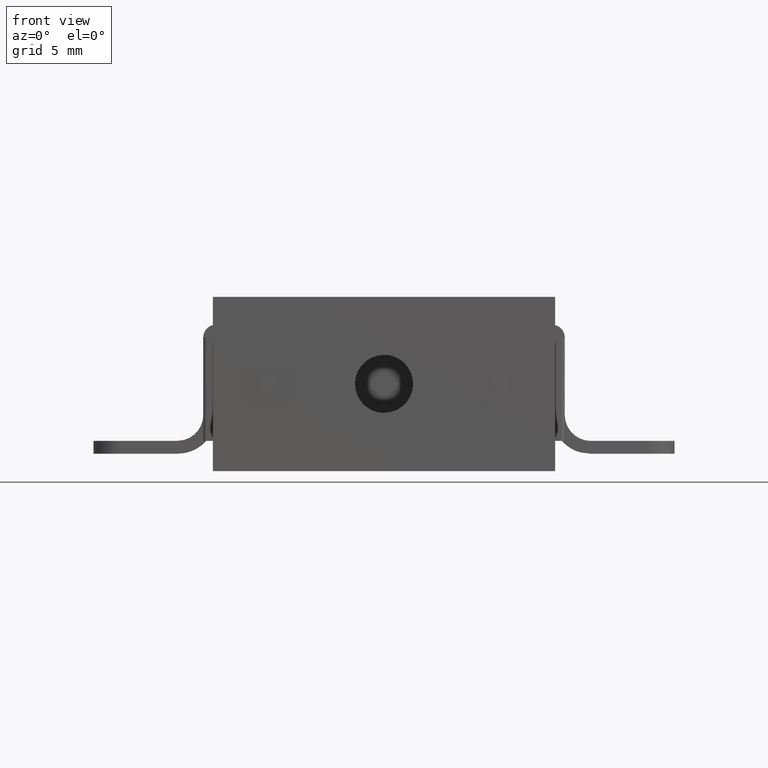
[diagram: clean part render]
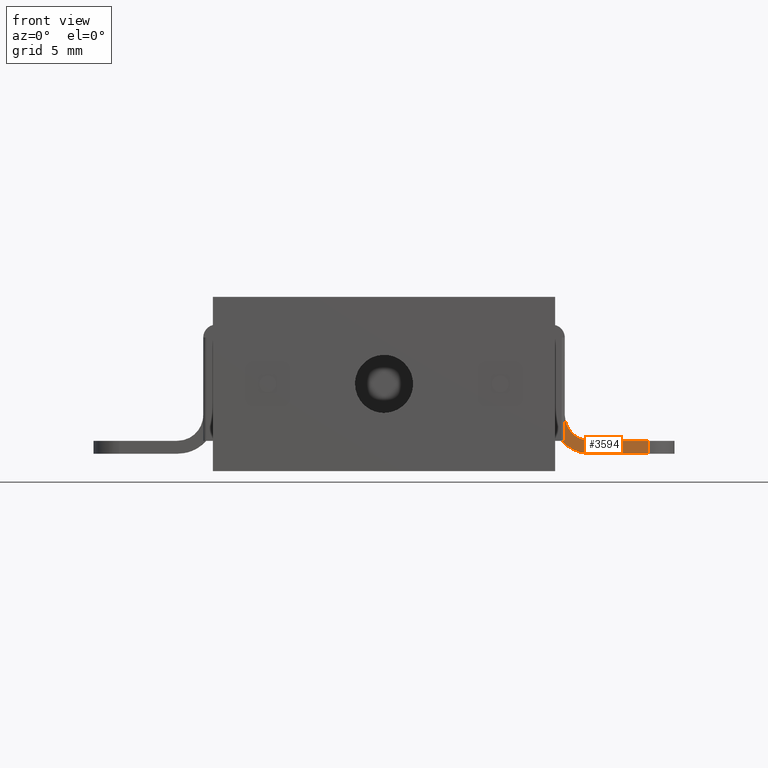
[diagram: same view with one face highlighted and labeled with its STEP entity id]
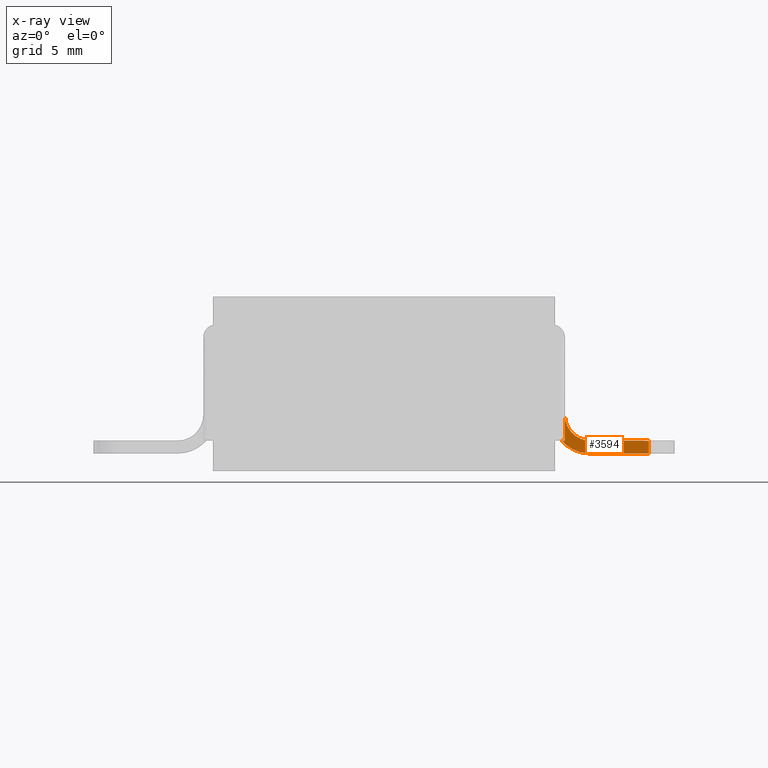
[diagram: x-ray of the same camera — body ghosted, the highlighted face saturated]
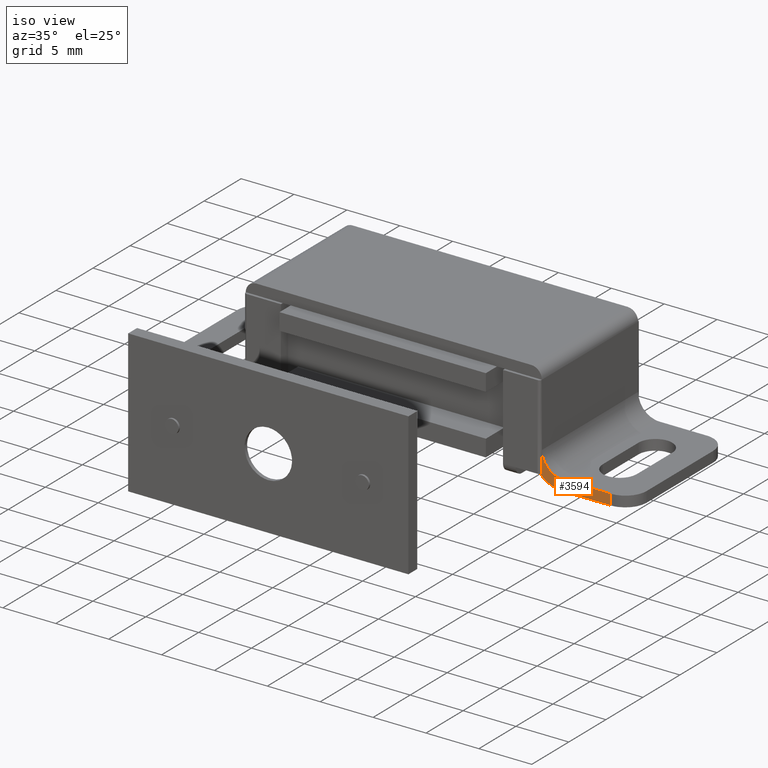
[diagram: same view with one face highlighted and labeled with its STEP entity id]
A machine part, front view. The second image highlights one B-rep face of the part: STEP entity #3594.
The next image is the same camera in x-ray: the body ghosted, the highlighted face saturated — about 0% of this face is hidden behind the body in this view.
A second angle (iso view) of the same face is appended — the face is thin or edge-on in the first view.
In plain terms, the highlighted face is a freeform B-spline surface patch.
Its self-contained STEP definition (entity closure, byte-faithful):
#1993=CARTESIAN_POINT('',(14.0,-6.500000000000000,1.0));
#1994=VERTEX_POINT('',#1993);
#2008=CARTESIAN_POINT('',(14.0,-6.500000000000000,3.0));
#2009=VERTEX_POINT('',#2008);
#2010=CARTESIAN_POINT('',(14.0,-6.500000000000000,1.0));
#2011=CARTESIAN_POINT('',(14.0,-6.500000000000000,3.0));
#2012=QUASI_UNIFORM_CURVE('',1,(#2010,#2011),.UNSPECIFIED.,.F.,.U.);
#2013=EDGE_CURVE('',#1994,#2009,#2012,.T.);
#3050=CARTESIAN_POINT('',(20.500000000000000,-6.500000000000000,-4.440892E-016));
#3051=VERTEX_POINT('',#3050);
#3074=CARTESIAN_POINT('',(20.500000000000000,-6.500000000000000,1.0));
#3075=VERTEX_POINT('',#3074);
#3089=CARTESIAN_POINT('',(20.500000000000000,-6.500000000000000,-4.440892E-016));
#3090=CARTESIAN_POINT('',(20.500000000000000,-6.500000000000000,1.0));
#3091=QUASI_UNIFORM_CURVE('',1,(#3089,#3090),.UNSPECIFIED.,.F.,.U.);
#3092=EDGE_CURVE('',#3051,#3075,#3091,.T.);
#3538=CARTESIAN_POINT('',(13.427465629780110,-6.500000000000000,-0.149849994185418));
#3539=CARTESIAN_POINT('',(13.427465629780110,-6.500000000000000,3.149850074651688));
#3540=CARTESIAN_POINT('',(20.836466754070990,-6.500000000000000,-0.149849994185418));
#3541=CARTESIAN_POINT('',(20.836466754070990,-6.500000000000000,3.149850074651688));
#3542=B_SPLINE_SURFACE_WITH_KNOTS('',1,1,((#3538,#3540),(#3539,#3541)),.UNSPECIFIED.,.F.,.F.,.U.,(2,2),(2,2),(0.0,3.299700068837107),(0.0,7.409001124290876),.UNSPECIFIED.);
#3543=CARTESIAN_POINT('',(16.0,-6.500000000000000,-4.336809E-016));
#3544=VERTEX_POINT('',#3543);
#3545=CARTESIAN_POINT('',(16.0,-6.500000000000000,-4.336809E-016));
#3546=CARTESIAN_POINT('',(20.500000000000000,-6.500000000000000,-4.440892E-016));
#3547=QUASI_UNIFORM_CURVE('',1,(#3545,#3546),.UNSPECIFIED.,.F.,.U.);
#3548=EDGE_CURVE('',#3544,#3051,#3547,.T.);
#3549=ORIENTED_EDGE('',*,*,#3548,.T.);
#3550=ORIENTED_EDGE('',*,*,#3092,.T.);
#3551=CARTESIAN_POINT('',(16.0,-6.500000000000000,1.0));
#3552=VERTEX_POINT('',#3551);
#3553=CARTESIAN_POINT('',(16.0,-6.500000000000000,1.0));
#3554=CARTESIAN_POINT('',(20.500000000000000,-6.500000000000000,1.0));
#3555=QUASI_UNIFORM_CURVE('',1,(#3553,#3554),.UNSPECIFIED.,.F.,.U.);
#3556=EDGE_CURVE('',#3552,#3075,#3555,.T.);
#3557=ORIENTED_EDGE('',*,*,#3556,.F.);
#3558=CARTESIAN_POINT('',(14.0,-6.500000000000000,3.0));
#3559=CARTESIAN_POINT('',(13.999999999999998,-6.500000000000001,1.0));
#3560=CARTESIAN_POINT('',(16.0,-6.500000000000000,1.0));
#3568=(BOUNDED_CURVE()B_SPLINE_CURVE(2,(#3558,#3559,#3560),.UNSPECIFIED.,.F.,.U.)CURVE()GEOMETRIC_REPRESENTATION_ITEM()QUASI_UNIFORM_CURVE()RATIONAL_B_SPLINE_CURVE((1.0,0.707106781186548,1.0))REPRESENTATION_ITEM(''));
#3569=EDGE_CURVE('',#2009,#3552,#3568,.T.);
#3570=ORIENTED_EDGE('',*,*,#3569,.F.);
#3571=ORIENTED_EDGE('',*,*,#2013,.F.);
#3572=CARTESIAN_POINT('',(13.763932022500260,-6.500000000000000,1.0));
#3573=VERTEX_POINT('',#3572);
#3574=CARTESIAN_POINT('',(13.763932022500260,-6.500000000000000,1.0));
#3575=CARTESIAN_POINT('',(14.0,-6.500000000000000,1.0));
#3576=QUASI_UNIFORM_CURVE('',1,(#3574,#3575),.UNSPECIFIED.,.F.,.U.);
#3577=EDGE_CURVE('',#3573,#1994,#3576,.T.);
#3578=ORIENTED_EDGE('',*,*,#3577,.F.);
#3579=CARTESIAN_POINT('',(16.0,-6.500000000000000,0.0));
#3580=CARTESIAN_POINT('',(14.658359213500145,-6.500000000000000,0.0));
#3581=CARTESIAN_POINT('',(13.763932022500260,-6.500000000000000,1.0));
#3589=(BOUNDED_CURVE()B_SPLINE_CURVE(2,(#3579,#3580,#3581),.UNSPECIFIED.,.F.,.U.)CURVE()GEOMETRIC_REPRESENTATION_ITEM()QUASI_UNIFORM_CURVE()RATIONAL_B_SPLINE_CURVE((1.0,0.912870929175279,1.0))REPRESENTATION_ITEM(''));
#3590=EDGE_CURVE('',#3544,#3573,#3589,.T.);
#3591=ORIENTED_EDGE('',*,*,#3590,.F.);
#3592=EDGE_LOOP('',(#3549,#3550,#3557,#3570,#3571,#3578,#3591));
#3593=FACE_OUTER_BOUND('',#3592,.T.);
#3594=ADVANCED_FACE('',(#3593),#3542,.F.);